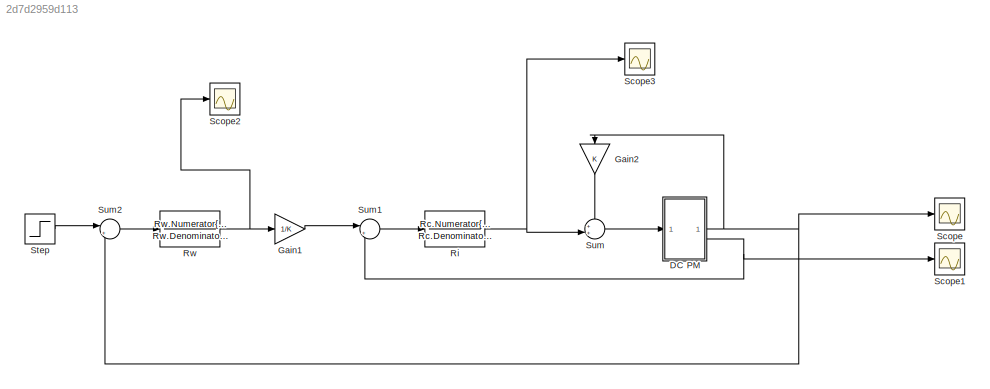
MODEL slx_2d7d2959d113
KIND model
CONFIG AbsTol = auto
CONFIG EnableMultiTasking = off
CONFIG FixedStep = auto
CONFIG MaxStep = auto
CONFIG MinStep = auto
CONFIG RelTol = 1e-3
CONFIG SampleTimeConstraint = Unconstrained
CONFIG SolverName = VariableStepAuto
CONFIG StartTime = 0.0
CONFIG StopTime = 10.0
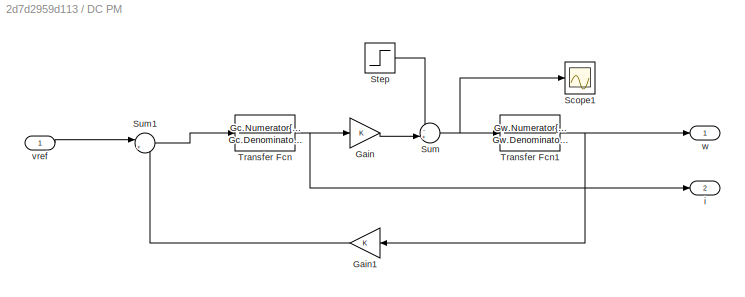
BLOCK [SubSystem] DC PM
BLOCK [Gain] DC PM/Gain
  Gain = K
BLOCK [Gain] DC PM/Gain1
  Gain = K
  NameLocation = top
BLOCK [Scope] DC PM/Scope1
  Floating = off
  NumInputPorts = 1
  ScopeSpecificationString = Simulink.scopes.TimeScopeBlockCfg('CurrentConfiguration', extmgr.ConfigurationSet(extmgr.Configuration('Core','General UI',true),extmgr.Configuration('Core','Source UI',true),extmgr.Configuration('Sources','WiredSimulink',true,'DataLoggingVariableName','ScopeData4'),extmgr.Configuration('Visuals','Time Domain',true,'SerializedDisplays',{struct('MinYLimReal','0.49711','MaxYLimReal','3.59315','YLabe...<+1429ch>
BLOCK [Step] DC PM/Step
  After = 3
  SampleTime = 0
  Time = 0.05
BLOCK [Sum] DC PM/Sum
  Inputs = -+|
BLOCK [Sum] DC PM/Sum1
  Inputs = |+-
BLOCK [TransferFcn] DC PM/Transfer Fcn
  Denominator = Gc.Denominator{1,1}
  Numerator = Gc.Numerator{1,1}
BLOCK [TransferFcn] DC PM/Transfer Fcn1
  Denominator = Gw.Denominator{1,1}
  Numerator = Gw.Numerator{1,1}
BLOCK [Outport] DC PM/i
  Port = 2
BLOCK [Inport] DC PM/vref
BLOCK [Outport] DC PM/w
BLOCK [Gain] Gain1
  Gain = 1/K
BLOCK [Gain] Gain2
  Gain = K
  NameLocation = left
BLOCK [TransferFcn] Ri
  Denominator = Rc.Denominator{1,1}
  Numerator = Rc.Numerator{1,1}
BLOCK [TransferFcn] Rw
  Denominator = Rw.Denominator{1,1}
  Numerator = Rw.Numerator{1,1}
BLOCK [Scope] Scope
  Floating = off
  NumInputPorts = 1
  ScopeSpecificationString = Simulink.scopes.TimeScopeBlockCfg('CurrentConfiguration', extmgr.ConfigurationSet(extmgr.Configuration('Core','General UI',true),extmgr.Configuration('Core','Source UI',true),extmgr.Configuration('Sources','WiredSimulink',true),extmgr.Configuration('Visuals','Time Domain',true,'SerializedDisplays',{struct('MinYLimReal','-38.09749','MaxYLimReal','342.87744','YLabelReal','','MinYLimMag','0.00000','M...<+1414ch>
BLOCK [Scope] Scope1
  Floating = off
  NumInputPorts = 1
  ScopeSpecificationString = Simulink.scopes.TimeScopeBlockCfg('CurrentConfiguration', extmgr.ConfigurationSet(extmgr.Configuration('Core','General UI',true),extmgr.Configuration('Core','Source UI',true),extmgr.Configuration('Sources','WiredSimulink',true,'DataLoggingVariableName','ScopeData1'),extmgr.Configuration('Visuals','Time Domain',true,'SerializedDisplays',{struct('MinYLimReal','-19.82564','MaxYLimReal','178.43078','Y...<+1453ch>
BLOCK [Scope] Scope2
  Floating = off
  NumInputPorts = 1
  ScopeSpecificationString = Simulink.scopes.TimeScopeBlockCfg('CurrentConfiguration', extmgr.ConfigurationSet(extmgr.Configuration('Core','General UI',true),extmgr.Configuration('Core','Source UI',true),extmgr.Configuration('Sources','WiredSimulink',true,'DataLoggingVariableName','ScopeData2'),extmgr.Configuration('Visuals','Time Domain',true,'SerializedDisplays',{struct('MinYLimReal','0.83205','MaxYLimReal','20.02091','YLab...<+1407ch>
BLOCK [Scope] Scope3
  Floating = off
  NumInputPorts = 1
  ScopeSpecificationString = Simulink.scopes.TimeScopeBlockCfg('CurrentConfiguration', extmgr.ConfigurationSet(extmgr.Configuration('Core','General UI',true),extmgr.Configuration('Core','Source UI',true),extmgr.Configuration('Sources','WiredSimulink',true,'DataLoggingVariableName','ScopeData3'),extmgr.Configuration('Visuals','Time Domain',true,'SerializedDisplays',{struct('MinYLimReal','-5.61484','MaxYLimReal','500.52389','YL...<+1471ch>
BLOCK [Step] Step
  After = w_ref
  SampleTime = 0
  Time = 0
BLOCK [Sum] Sum
  Inputs = ++|
  NameLocation = top
BLOCK [Sum] Sum1
  Inputs = |+-
BLOCK [Sum] Sum2
  Inputs = |+-
LINE DC PM/Gain1:1 -> DC PM/Sum1:2
LINE DC PM/Gain:1 -> DC PM/Sum:2
LINE DC PM/Step:1 -> DC PM/Sum:1
LINE DC PM/Sum1:1 -> DC PM/Transfer Fcn:1
NET DC PM/Sum:1 -> DC PM/Scope1:1, DC PM/Transfer Fcn1:1
NET DC PM/Transfer Fcn1:1 -> DC PM/Gain1:1, DC PM/w:1
NET DC PM/Transfer Fcn:1 -> DC PM/Gain:1, DC PM/i:1
LINE DC PM/vref:1 -> DC PM/Sum1:1
NET DC PM:1 -> Gain2:1, Scope:1, Sum2:2
NET DC PM:2 -> Scope1:1, Sum1:2
LINE Gain1:1 -> Sum1:1
LINE Gain2:1 -> Sum:1
NET Ri:1 -> Scope3:1, Sum:2
NET Rw:1 -> Gain1:1, Scope2:1
LINE Step:1 -> Sum2:1
LINE Sum1:1 -> Ri:1
LINE Sum2:1 -> Rw:1
LINE Sum:1 -> DC PM:1
note: NET lines group one-source signal fan-out (src -> all destinations, sorted); 1:1 wires keep LINE
